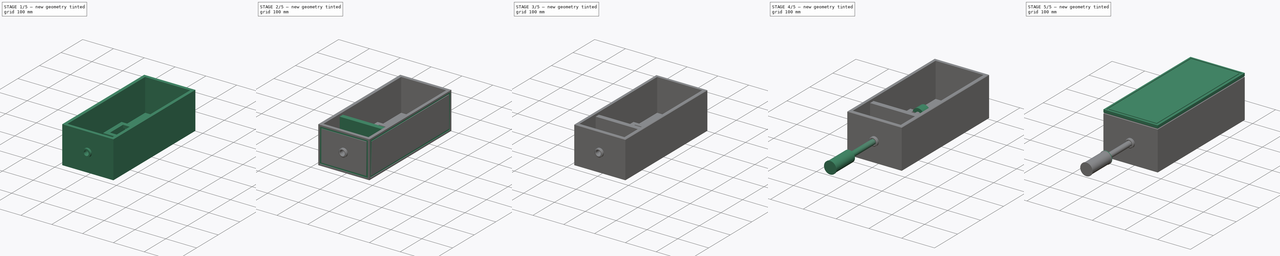
[diagram: build sequence overview — one tinted view per stage of 5, left to right]
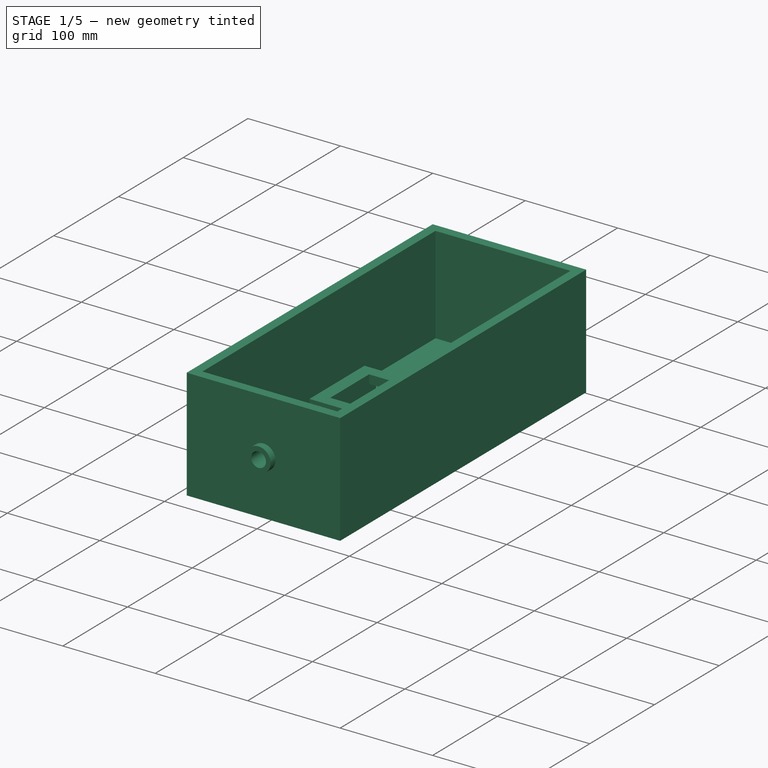
[diagram: stage 1 of 5 — iso view after this stage's code; geometry added in this stage tinted green]
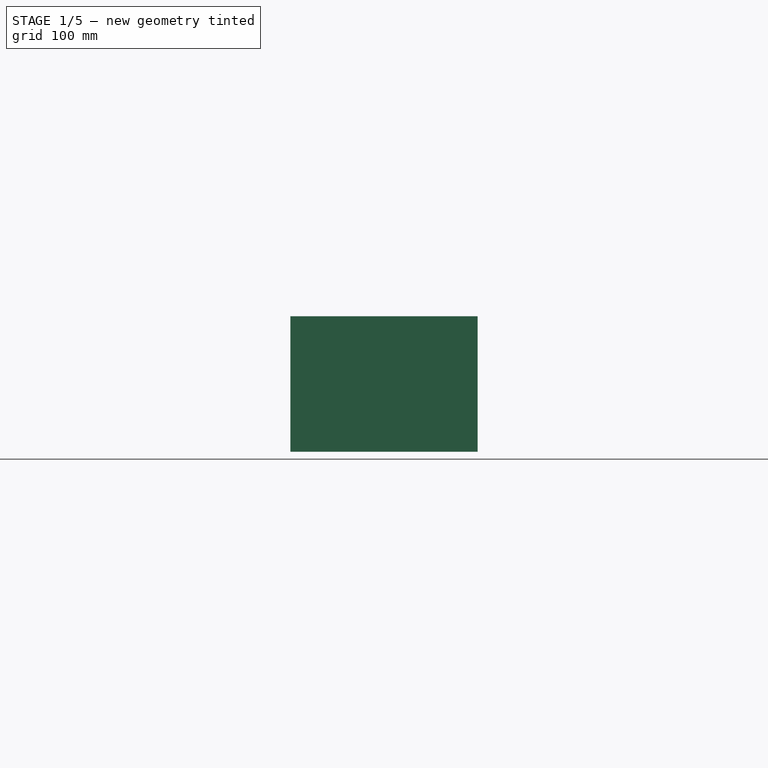
[diagram: stage 1 of 5 — front view after this stage's code; geometry added in this stage tinted green]
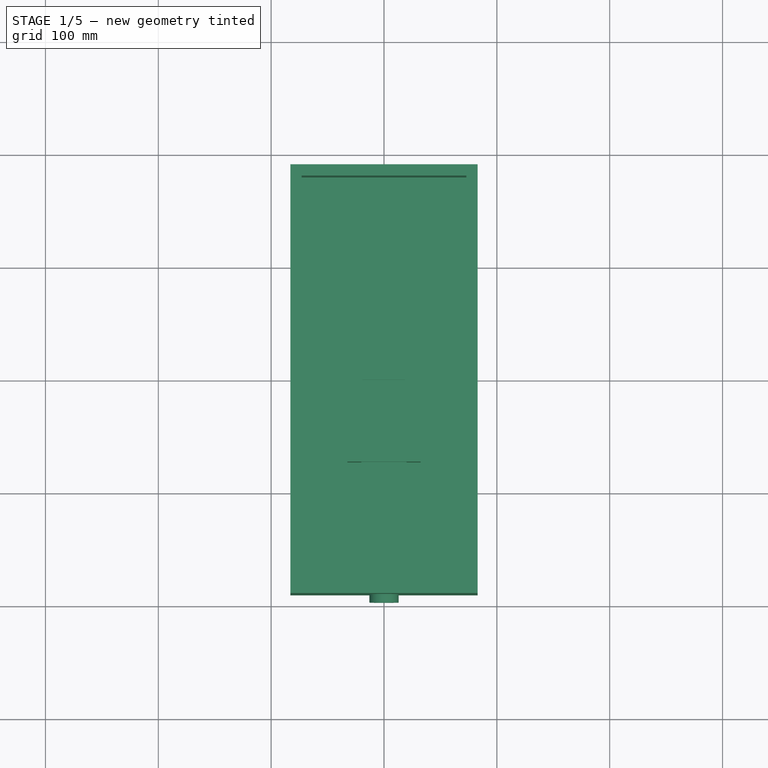
[diagram: stage 1 of 5 — top view after this stage's code; geometry added in this stage tinted green]
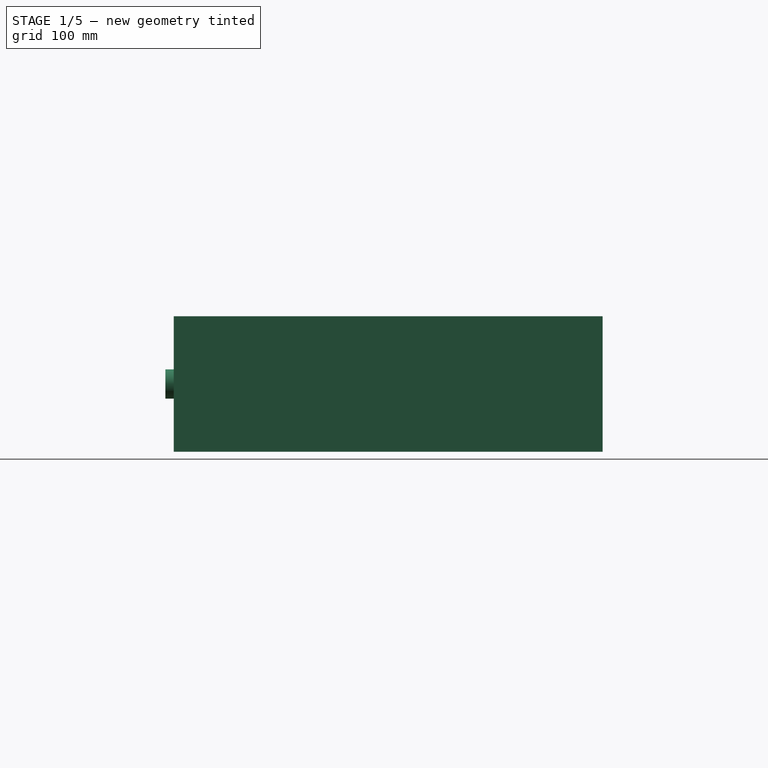
[diagram: stage 1 of 5 — right view after this stage's code; geometry added in this stage tinted green]
FCSTD DOCUMENT  (FreeCAD 1.0R39285 (Git))
Label: MouseSensorAdditionalPart
License: All rights reserved
LicenseURL: https://en.wikipedia.org/wiki/All_rights_reserved
objects: Sketcher::SketchObject×24, PartDesign::Pad×16, PartDesign::Pocket×11, PartDesign::Chamfer×8, PartDesign::Body×4, PartDesign::Hole×1
note: 160 computed .brp shape members not serialized (recipe doc carries the construction recipe); baked Part::Feature solids carry a one-line shape summary decoded from their .brp

FEATURE [PartDesign::Body] Body002  label="ControllerStick"
  AllowCompound = false
  Group = -> [Sketch016,Pad006,Sketch017,Pad007,Chamfer006,Sketch018,Pad008,Sketch019,Pad009,Sketch020,Pad010,Chamfer007]
  Origin = -> Origin002
  Tip = -> Chamfer007
FEATURE [Sketcher::SketchObject] Sketch
  ArcFitTolerance = 1e-06
  AttachmentSupport = -> [XY_Plane]
  FullyConstrained = true
  MakeInternals = false
  MapMode = 5
  sketch-geometry (5):
    g0: LineSegment StartX=-83 StartY=-190 StartZ=0 EndX=83 EndY=-190 EndZ=0
    g1: LineSegment StartX=83 StartY=-190 StartZ=0 EndX=83 EndY=190 EndZ=0
    g2: LineSegment StartX=83 StartY=190 StartZ=0 EndX=-83 EndY=190 EndZ=0
    g3: LineSegment StartX=-83 StartY=190 StartZ=0 EndX=-83 EndY=-190 EndZ=0
    g4: GeomPoint [constr] X=0 Y=0 Z=0
  constraints (12):
    c: Coincident(g0,g1)
    c: Coincident(g1,g2)
    c: Coincident(g2,g3)
    c: Coincident(g3,g0)
    c: Horizontal(g0)
    c: Horizontal(g2)
    c: Vertical(g1)
    c: Vertical(g3)
    c: Symmetric(g2,g0,g4)
    c: Distance(g1,g3) = 166
    c: Distance(g0,g2) = 380
    c: Coincident(g4,g-1)
FEATURE [PartDesign::Pad] Pad
  Direction = (0,0,1)
  Length = 120
  Length2 = 10
  Profile = -> Sketch
  ReferenceAxis = -> Sketch [N_Axis]
  Refine = true
  Suppressed = false
  Type = 0
FEATURE [Sketcher::SketchObject] Sketch001
  ArcFitTolerance = 1e-06
  AttachmentSupport = -> [Pad]
  FullyConstrained = true
  MakeInternals = false
  MapMode = 5
  Placement = pos=(0,0,120) rot=(0,0,1;0rad)
  sketch-geometry (5):
    g0: LineSegment StartX=-73 StartY=-180 StartZ=0 EndX=73 EndY=-180 EndZ=0
    g1: LineSegment StartX=73 StartY=-180 StartZ=0 EndX=73 EndY=180 EndZ=0
    g2: LineSegment StartX=73 StartY=180 StartZ=0 EndX=-73 EndY=180 EndZ=0
    g3: LineSegment StartX=-73 StartY=180 StartZ=0 EndX=-73 EndY=-180 EndZ=0
    g4: GeomPoint [constr] X=0 Y=0 Z=0
  constraints (12):
    c: Coincident(g0,g1)
    c: Coincident(g1,g2)
    c: Coincident(g2,g3)
    c: Coincident(g3,g0)
    c: Horizontal(g0)
    c: Horizontal(g2)
    c: Vertical(g1)
    c: Vertical(g3)
    c: Symmetric(g2,g0,g4)
    c: Distance(g1,g3) = 146
    c: Distance(g0,g2) = 360
    c: Coincident(g4,g-1)
FEATURE [PartDesign::Pocket] Pocket
  BaseFeature = -> Pad
  Direction = (0,0,-1)
  Length = 105
  Length2 = 5
  Profile = -> Sketch001
  ReferenceAxis = -> Sketch001 [N_Axis]
  Refine = true
  Suppressed = false
  Type = 0
FEATURE [Sketcher::SketchObject] Sketch002
  ArcFitTolerance = 1e-06
  AttachmentSupport = -> [Pocket]
  FullyConstrained = false
  MakeInternals = false
  MapMode = 5
  Placement = pos=(0,-190,0) rot=(1,0,0;1.5708rad)
  sketch-geometry (1):
    g0: Circle CenterX=0 CenterY=59.9969 CenterZ=0 NormalX=0 NormalY=0 NormalZ=1 AngleXU=0 Radius=13
  constraints (2):
    c: Diameter(g0) = 26
    c: PointOnObject(g0,g-2)
FEATURE [PartDesign::Pad] Pad001
  BaseFeature = -> Pocket
  Direction = (0,-1,2e-16)
  Length = 7.5
  Length2 = 10
  Profile = -> Sketch002 [Edge1]
  ReferenceAxis = -> Sketch002 [N_Axis]
  Refine = true
  Suppressed = false
  Type = 0
FEATURE [Sketcher::SketchObject] Sketch003
  ArcFitTolerance = 1e-06
  AttachmentSupport = -> [Pad001]
  FullyConstrained = false
  MakeInternals = false
  MapMode = 5
  Placement = pos=(-1.442e-13,-197.5,2.489e-13) rot=(1,0,0;1.5708rad)
  sketch-geometry (1):
    g0: Circle CenterX=0 CenterY=60.0001 CenterZ=0 NormalX=0 NormalY=0 NormalZ=1 AngleXU=0 Radius=8
  constraints (2):
    c: Diameter(g0) = 16
    c: PointOnObject(g0,g-2)
FEATURE [PartDesign::Pocket] Pocket001
  BaseFeature = -> Pad001
  Direction = (0,1,-1.4e-15)
  Length = 17.5
  Length2 = 5
  Profile = -> Sketch003
  ReferenceAxis = -> Sketch003 [N_Axis]
  Refine = true
  Suppressed = false
  Type = 0
FEATURE [PartDesign::Body] Body  label="ControllerBody"
  AllowCompound = false
  Group = -> [Sketch,Pad,Sketch001,Pocket,Sketch002,Pad001,Sketch003,Pocket001,Chamfer,Chamfer001,Sketch007,Pad004,Sketch008,Hole,Sketch009,Pocket003,Sketch010,Pocket004,Sketch011,Pocket005,Sketch012,Pocket006,Sketch013,Pocket007,Sketch014,Pad005,Chamfer002,Chamfer003,Chamfer004,Pad011,Pad012,Pad013,Pad014]
  Origin = -> Origin
  Tip = -> Pad014
FEATURE [Sketcher::SketchObject] Sketch021
  ArcFitTolerance = 1e-06
  AttachmentSupport = -> [XY_Plane003]
  FullyConstrained = false
  MakeInternals = false
  MapMode = 5
  sketch-geometry (5):
    g0: LineSegment StartX=-32.5 StartY=-72.5 StartZ=0 EndX=32.5 EndY=-72.5 EndZ=0
    g1: LineSegment StartX=32.5 StartY=-72.5 StartZ=0 EndX=32.5 EndY=12.5 EndZ=0
    g2: LineSegment StartX=32.5 StartY=12.5 StartZ=0 EndX=-32.5 EndY=12.5 EndZ=0
    g3: LineSegment StartX=-32.5 StartY=12.5 StartZ=0 EndX=-32.5 EndY=-72.5 EndZ=0
    g4: GeomPoint [constr] X=0 Y=-30 Z=0
  constraints (12):
    c: PointOnObject(g4,g-2)
    c: Coincident(g0,g1)
    c: Coincident(g1,g2)
    c: Coincident(g2,g3)
    c: Coincident(g3,g0)
    c: Horizontal(g0)
    c: Horizontal(g2)
    c: Vertical(g1)
    c: Vertical(g3)
    c: Symmetric(g2,g0,g4)
    c: Distance(g1,g3) = 65
    c: Distance(g0,g2) = 85
FEATURE [PartDesign::Pad] Pad015
  Direction = (0,0,1)
  Length = 63
  Length2 = 10
  Profile = -> Sketch021
  ReferenceAxis = -> Sketch021 [N_Axis]
  Refine = true
  Suppressed = false
  Type = 0
FEATURE [Sketcher::SketchObject] Sketch022
  ArcFitTolerance = 1e-06
  AttachmentSupport = -> [Pad015]
  FullyConstrained = false
  MakeInternals = false
  MapMode = 5
  Placement = pos=(0,0,0) rot=(1,0,0;3.14159rad)
  sketch-geometry (5):
    g0: LineSegment StartX=-20 StartY=-12.5 StartZ=0 EndX=20 EndY=-12.5 EndZ=0
    g1: LineSegment StartX=20 StartY=-12.5 StartZ=0 EndX=20 EndY=72.5 EndZ=0
    g2: LineSegment StartX=20 StartY=72.5 StartZ=0 EndX=-20 EndY=72.5 EndZ=0
    g3: LineSegment StartX=-20 StartY=72.5 StartZ=0 EndX=-20 EndY=-12.5 EndZ=0
    g4: GeomPoint [constr] X=0 Y=30 Z=0
  constraints (12):
    c: PointOnObject(g4,g-2)
    c: Coincident(g0,g1)
    c: Coincident(g1,g2)
    c: Coincident(g2,g3)
    c: Coincident(g3,g0)
    c: Horizontal(g0)
    c: Horizontal(g2)
    c: Vertical(g1)
    c: Vertical(g3)
    c: Symmetric(g2,g0,g4)
    c: Distance(g1,g3) = 40
    c: Distance(g0,g2) = 85
FEATURE [PartDesign::Pocket] Pocket009
  BaseFeature = -> Pad015
  Direction = (0,0,1)
  Length = 53.7
  Length2 = 5
  Profile = -> Sketch022
  ReferenceAxis = -> Sketch022 [N_Axis]
  Refine = true
  Suppressed = false
  Type = 0
FEATURE [Sketcher::SketchObject] Sketch023
  ArcFitTolerance = 1e-06
  AttachmentSupport = -> [XY_Plane003]
  FullyConstrained = false
  MakeInternals = false
  MapMode = 5
  sketch-geometry (5):
    g0: LineSegment StartX=-18.75 StartY=-60 StartZ=0 EndX=18.75 EndY=-60 EndZ=0
    g1: LineSegment StartX=18.75 StartY=-60 StartZ=0 EndX=18.75 EndY=0 EndZ=0
    g2: LineSegment StartX=18.75 StartY=0 StartZ=0 EndX=-18.75 EndY=0 EndZ=0
    g3: LineSegment StartX=-18.75 StartY=0 StartZ=0 EndX=-18.75 EndY=-60 EndZ=0
    g4: GeomPoint [constr] X=0 Y=-30 Z=0
  constraints (12):
    c: PointOnObject(g4,g-2)
    c: Coincident(g0,g1)
    c: Coincident(g1,g2)
    c: Coincident(g2,g3)
    c: Coincident(g3,g0)
    c: Horizontal(g0)
    c: Horizontal(g2)
    c: Vertical(g1)
    c: Vertical(g3)
    c: Symmetric(g2,g0,g4)
    c: Distance(g1,g3) = 37.5
    c: PointOnObject(g1,g-1)
FEATURE [PartDesign::Pocket] Pocket010
  BaseFeature = -> Pocket009
  Direction = (0,0,-1)
  Length = 63
  Length2 = 5
  Profile = -> Sketch023
  ReferenceAxis = -> Sketch023 [N_Axis]
  Refine = true
  Reversed = true
  Suppressed = false
  Type = 0
FEATURE [PartDesign::Body] Body003  label="MouseSensorAdditionalPart"
  AllowCompound = false
  Group = -> [Sketch021,Pad015,Sketch022,Pocket009,Sketch023,Pocket010]
  Origin = -> Origin003
  Placement = pos=(0,0,15) rot=(0,0,1;0rad)
  Tip = -> Pocket010
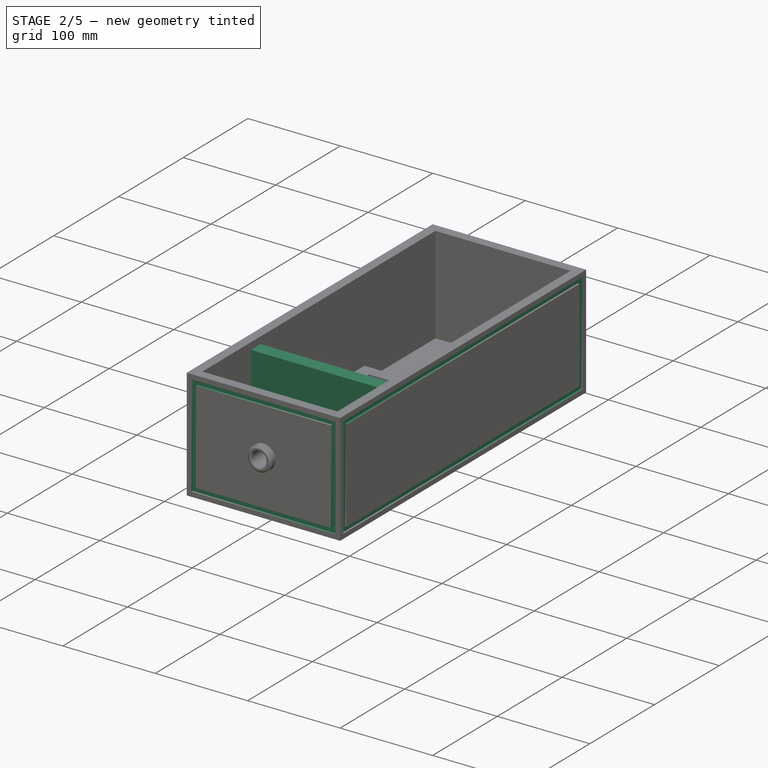
[diagram: stage 2 of 5 — iso view after this stage's code; geometry added in this stage tinted green]
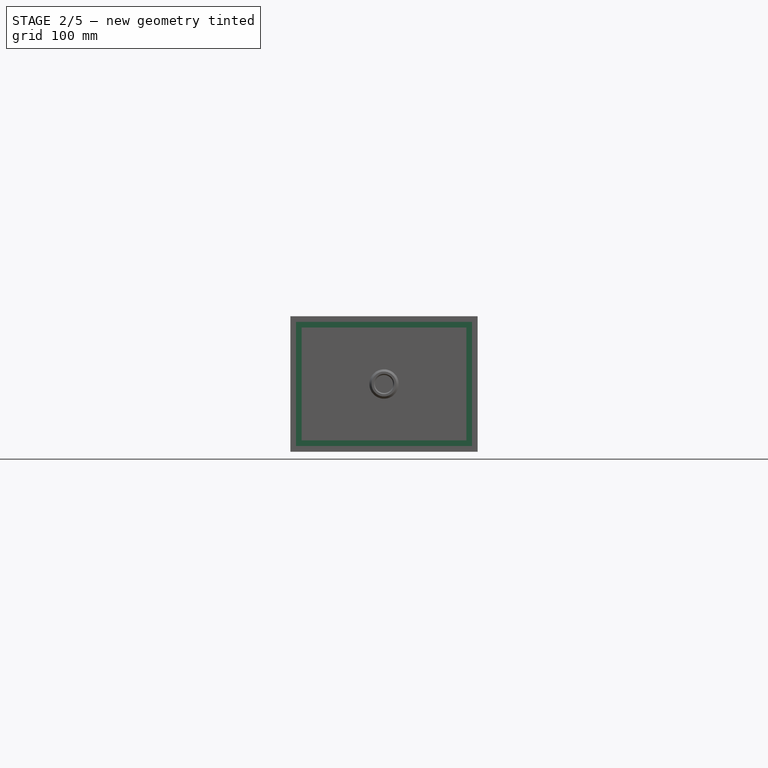
[diagram: stage 2 of 5 — front view after this stage's code; geometry added in this stage tinted green]
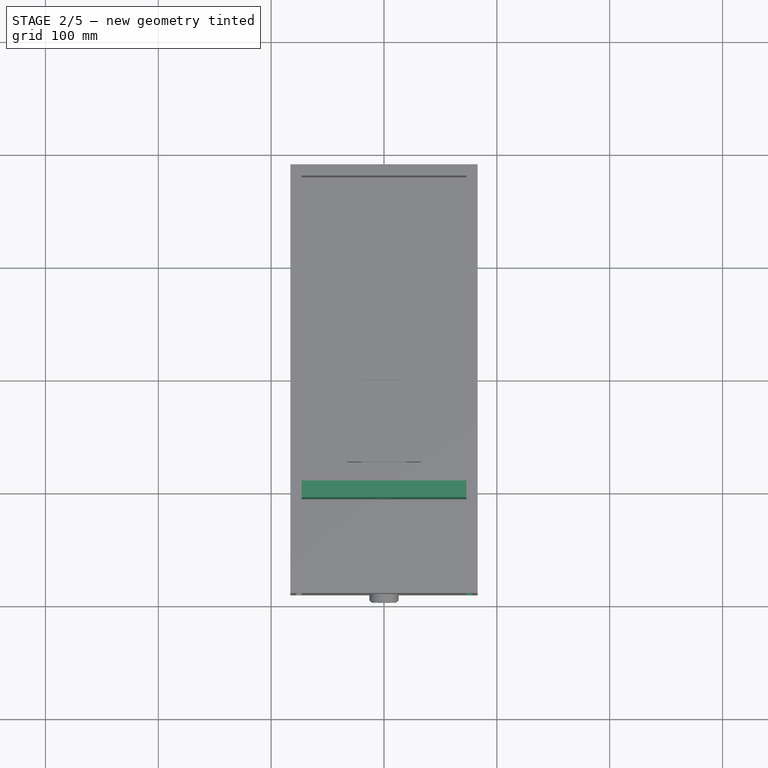
[diagram: stage 2 of 5 — top view after this stage's code; geometry added in this stage tinted green]
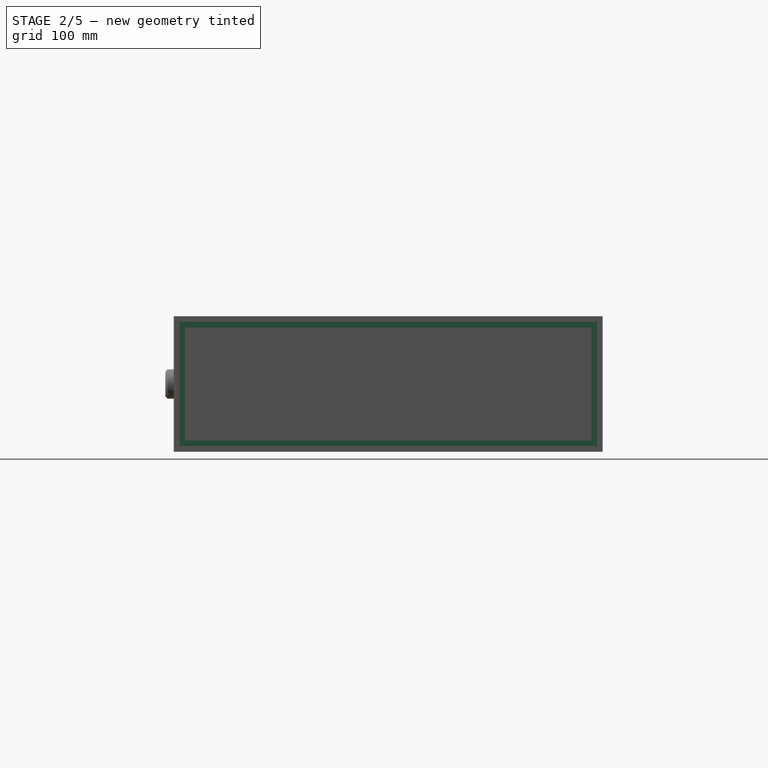
[diagram: stage 2 of 5 — right view after this stage's code; geometry added in this stage tinted green]
FEATURE [PartDesign::Chamfer] Chamfer
  Angle = 45
  Base = -> Pocket001 [Edge19]
  BaseFeature = -> Pocket001
  ChamferType = 0
  FlipDirection = false
  Refine = true
  Size = 2
  Size2 = 1
  SupportTransform = false
  Suppressed = false
  UseAllEdges = false
FEATURE [PartDesign::Chamfer] Chamfer001
  Angle = 45
  Base = -> Chamfer [Edge10]
  BaseFeature = -> Chamfer
  ChamferType = 0
  FlipDirection = false
  Refine = true
  Size = 1
  Size2 = 1
  SupportTransform = false
  Suppressed = false
  UseAllEdges = false
FEATURE [Sketcher::SketchObject] Sketch007
  ArcFitTolerance = 1e-06
  AttachmentSupport = -> [Chamfer001]
  FullyConstrained = false
  MakeInternals = false
  MapMode = 5
  Placement = pos=(0,0,15) rot=(0,0,1;0rad)
  sketch-geometry (4):
    g0: LineSegment StartX=-73.0034 StartY=-90.0581 StartZ=0 EndX=-73.0034 EndY=-105.058 EndZ=0
    g1: LineSegment StartX=-73.0034 StartY=-105.058 StartZ=0 EndX=72.9966 EndY=-105.058 EndZ=0
    g2: LineSegment StartX=72.9966 StartY=-105.058 StartZ=0 EndX=72.9966 EndY=-90.0581 EndZ=0
    g3: LineSegment StartX=72.9966 StartY=-90.0581 StartZ=0 EndX=-73.0034 EndY=-90.0581 EndZ=0
  constraints (10):
    c: Coincident(g0,g1)
    c: Coincident(g1,g2)
    c: Coincident(g2,g3)
    c: Coincident(g3,g0)
    c: Vertical(g0)
    c: Vertical(g2)
    c: Horizontal(g1)
    c: Horizontal(g3)
    c: Distance(g0,g2) = 146
    c: Distance(g1,g3) = 15
FEATURE [PartDesign::Pad] Pad004
  BaseFeature = -> Chamfer001
  Direction = (0,0,1)
  Length = 97.5
  Length2 = 10
  Profile = -> Sketch007
  ReferenceAxis = -> Sketch007 [N_Axis]
  Refine = true
  Suppressed = false
  Type = 0
FEATURE [Sketcher::SketchObject] Sketch008
  ArcFitTolerance = 1e-06
  AttachmentSupport = -> [Pad004]
  FullyConstrained = false
  MakeInternals = false
  MapMode = 5
  Placement = pos=(0,-105.058,0) rot=(1,0,0;1.5708rad)
  sketch-geometry (1):
    g0: Circle CenterX=0 CenterY=60.0017 CenterZ=0 NormalX=0 NormalY=0 NormalZ=1 AngleXU=0 Radius=8
  constraints (2):
    c: Diameter(g0) = 16
    c: PointOnObject(g0,g-2)
FEATURE [PartDesign::Hole] Hole
  BaseFeature = -> Pad004
  CustomThreadClearance = 0
  Depth = 20
  DepthType = 0
  Diameter = 16
  DrillForDepth = false
  DrillPoint = 1
  DrillPointAngle = 118
  HoleCutCountersinkAngle = 90
  HoleCutCustomValues = false
  HoleCutDepth = 0
  HoleCutDiameter = 6.1
  HoleCutType = 0
  ModelThread = false
  Profile = -> Sketch008
  Refine = true
  Suppressed = false
  Tapered = true
  TaperedAngle = 90
  ThreadClass = 0
  ThreadDepth = 20
  ThreadDepthType = 0
  ThreadDirection = 0
  ThreadFit = 0
  ThreadSize = 0
  ThreadType = 0
  Threaded = false
  UseCustomThreadClearance = false
FEATURE [Sketcher::SketchObject] Sketch009
  ArcFitTolerance = 1e-06
  AttachmentSupport = -> [Hole]
  FullyConstrained = false
  MakeInternals = false
  MapMode = 5
  Placement = pos=(0,-190,0) rot=(1,0,0;1.5708rad)
  sketch-geometry (10):
    g0: LineSegment StartX=-78 StartY=5.06645 StartZ=0 EndX=78 EndY=5.06645 EndZ=0
    g1: LineSegment StartX=78 StartY=5.06645 StartZ=0 EndX=78 EndY=115.066 EndZ=0
    g2: LineSegment StartX=78 StartY=115.066 StartZ=0 EndX=-78 EndY=115.066 EndZ=0
    g3: LineSegment StartX=-78 StartY=115.066 StartZ=0 EndX=-78 EndY=5.06645 EndZ=0
    g4: GeomPoint [constr] X=0 Y=60.0664 Z=0
    g5: LineSegment StartX=-73 StartY=10.0664 StartZ=0 EndX=73 EndY=10.0664 EndZ=0
    g6: LineSegment StartX=73 StartY=10.0664 StartZ=0 EndX=73 EndY=110.066 EndZ=0
    g7: LineSegment StartX=73 StartY=110.066 StartZ=0 EndX=-73 EndY=110.066 EndZ=0
    g8: LineSegment StartX=-73 StartY=110.066 StartZ=0 EndX=-73 EndY=10.0664 EndZ=0
    g9: GeomPoint [constr] X=0 Y=60.0664 Z=0
  constraints (24):
    c: Coincident(g0,g1)
    c: Coincident(g1,g2)
    c: Coincident(g2,g3)
    c: Coincident(g3,g0)
    c: Horizontal(g0)
    c: Horizontal(g2)
    c: Vertical(g1)
    c: Vertical(g3)
    c: Symmetric(g2,g0,g4)
    c: Distance(g1,g3) = 156
    c: Distance(g0,g2) = 110
    c: PointOnObject(g4,g-2)
    c: Coincident(g5,g6)
    c: Coincident(g6,g7)
    c: Coincident(g7,g8)
    c: Coincident(g8,g5)
    c: Horizontal(g5)
    c: Horizontal(g7)
    c: Vertical(g6)
    c: Vertical(g8)
    c: Symmetric(g7,g5,g9)
    c: Distance(g6,g8) = 146
    c: Distance(g5,g7) = 100
    c: Coincident(g9,g4)
FEATURE [PartDesign::Pocket] Pocket003
  BaseFeature = -> Hole
  Direction = (0,1,-2e-16)
  Length = 2
  Length2 = 5
  Profile = -> Sketch009
  ReferenceAxis = -> Sketch009 [N_Axis]
  Refine = true
  Suppressed = false
  Type = 0
FEATURE [Sketcher::SketchObject] Sketch010
  ArcFitTolerance = 1e-06
  AttachmentSupport = -> [Pocket003]
  FullyConstrained = false
  MakeInternals = false
  MapMode = 5
  Placement = pos=(83,0,0) rot=(0.57735,0.57735,0.57735;2.0944rad)
  sketch-geometry (10):
    g0: LineSegment StartX=-185 StartY=5.04486 StartZ=0 EndX=185 EndY=5.04486 EndZ=0
    g1: LineSegment StartX=185 StartY=5.04486 StartZ=0 EndX=185 EndY=115.045 EndZ=0
    g2: LineSegment StartX=185 StartY=115.045 StartZ=0 EndX=-185 EndY=115.045 EndZ=0
    g3: LineSegment StartX=-185 StartY=115.045 StartZ=0 EndX=-185 EndY=5.04486 EndZ=0
    g4: GeomPoint [constr] X=0 Y=60.0449 Z=0
    g5: LineSegment StartX=-180 StartY=10.0449 StartZ=0 EndX=180 EndY=10.0449 EndZ=0
    g6: LineSegment StartX=180 StartY=10.0449 StartZ=0 EndX=180 EndY=110.045 EndZ=0
    g7: LineSegment StartX=180 StartY=110.045 StartZ=0 EndX=-180 EndY=110.045 EndZ=0
    g8: LineSegment StartX=-180 StartY=110.045 StartZ=0 EndX=-180 EndY=10.0449 EndZ=0
    g9: GeomPoint [constr] X=0 Y=60.0449 Z=0
  constraints (24):
    c: Coincident(g0,g1)
    c: Coincident(g1,g2)
    c: Coincident(g2,g3)
    c: Coincident(g3,g0)
    c: Horizontal(g0)
    c: Horizontal(g2)
    c: Vertical(g1)
    c: Vertical(g3)
    c: Symmetric(g2,g0,g4)
    c: Distance(g1,g3) = 370
    c: Distance(g0,g2) = 110
    c: PointOnObject(g4,g-2)
    c: Coincident(g5,g6)
    c: Coincident(g6,g7)
    c: Coincident(g7,g8)
    c: Coincident(g8,g5)
    c: Horizontal(g5)
    c: Horizontal(g7)
    c: Vertical(g6)
    c: Vertical(g8)
    c: Symmetric(g7,g5,g9)
    c: Distance(g6,g8) = 360
    c: Distance(g5,g7) = 100
    c: Coincident(g9,g4)
FEATURE [PartDesign::Pocket] Pocket004
  BaseFeature = -> Pocket003
  Direction = (-1,0,0)
  Length = 2
  Length2 = 5
  Profile = -> Sketch010
  ReferenceAxis = -> Sketch010 [N_Axis]
  Refine = true
  Suppressed = false
  Type = 0
FEATURE [Sketcher::SketchObject] Sketch011
  ArcFitTolerance = 1e-06
  AttachmentSupport = -> [Pocket004]
  FullyConstrained = false
  MakeInternals = false
  MapMode = 5
  Placement = pos=(0,190,0) rot=(0,0.707107,0.707107;3.14159rad)
  sketch-geometry (10):
    g0: LineSegment StartX=-78 StartY=5.0321 StartZ=0 EndX=78 EndY=5.0321 EndZ=0
    g1: LineSegment StartX=78 StartY=5.0321 StartZ=0 EndX=78 EndY=115.032 EndZ=0
    g2: LineSegment StartX=78 StartY=115.032 StartZ=0 EndX=-78 EndY=115.032 EndZ=0
    g3: LineSegment StartX=-78 StartY=115.032 StartZ=0 EndX=-78 EndY=5.0321 EndZ=0
    g4: GeomPoint [constr] X=0 Y=60.0321 Z=0
    g5: LineSegment StartX=-73 StartY=10.0321 StartZ=0 EndX=73 EndY=10.0321 EndZ=0
    g6: LineSegment StartX=73 StartY=10.0321 StartZ=0 EndX=73 EndY=110.032 EndZ=0
    g7: LineSegment StartX=73 StartY=110.032 StartZ=0 EndX=-73 EndY=110.032 EndZ=0
    g8: LineSegment StartX=-73 StartY=110.032 StartZ=0 EndX=-73 EndY=10.0321 EndZ=0
    g9: GeomPoint [constr] X=0 Y=60.0321 Z=0
  constraints (24):
    c: Coincident(g0,g1)
    c: Coincident(g1,g2)
    c: Coincident(g2,g3)
    c: Coincident(g3,g0)
    c: Horizontal(g0)
    c: Horizontal(g2)
    c: Vertical(g1)
    c: Vertical(g3)
    c: Symmetric(g2,g0,g4)
    c: Distance(g1,g3) = 156
    c: Distance(g0,g2) = 110
    c: PointOnObject(g4,g-2)
    c: Coincident(g5,g6)
    c: Coincident(g6,g7)
    c: Coincident(g7,g8)
    c: Coincident(g8,g5)
    c: Horizontal(g5)
    c: Horizontal(g7)
    c: Vertical(g6)
    c: Vertical(g8)
    c: Symmetric(g7,g5,g9)
    c: Distance(g6,g8) = 146
    c: Distance(g5,g7) = 100
    c: Coincident(g9,g4)
FEATURE [PartDesign::Pocket] Pocket005
  BaseFeature = -> Pocket004
  Direction = (0,-1,2e-16)
  Length = 2
  Length2 = 5
  Profile = -> Sketch011
  ReferenceAxis = -> Sketch011 [N_Axis]
  Refine = true
  Suppressed = false
  Type = 0
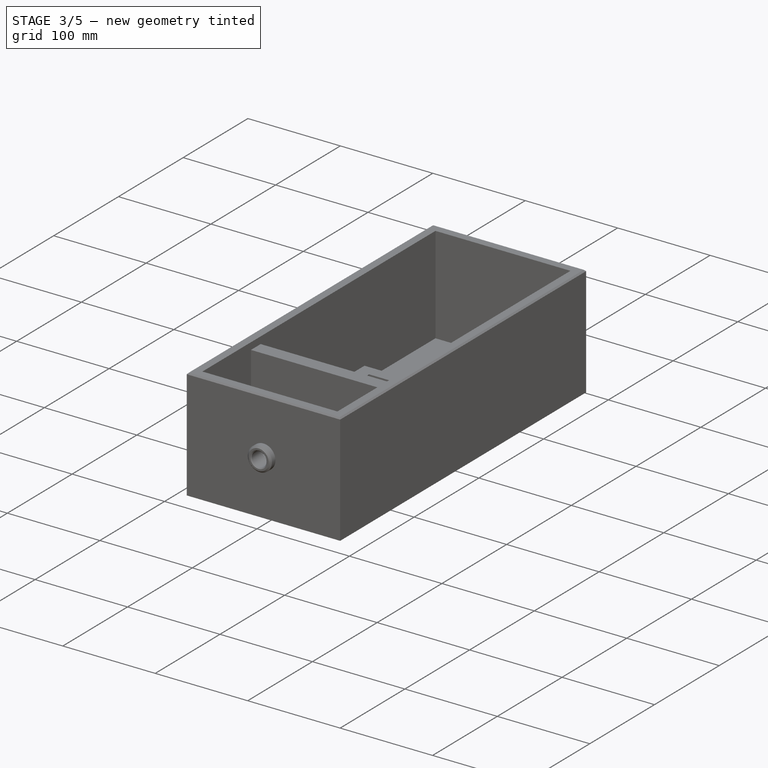
[diagram: stage 3 of 5 — iso view after this stage's code; geometry added in this stage tinted green]
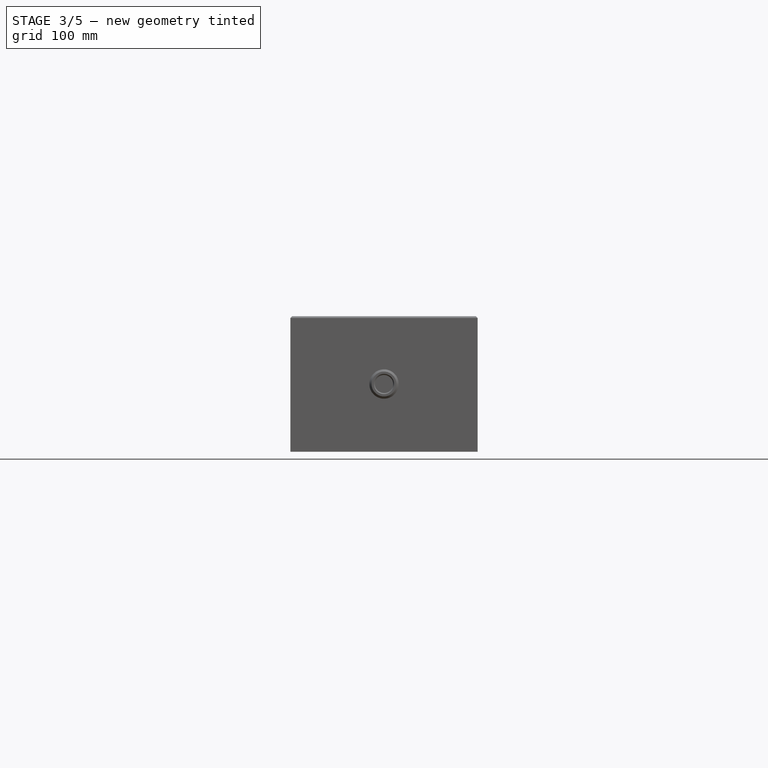
[diagram: stage 3 of 5 — front view after this stage's code; geometry added in this stage tinted green]
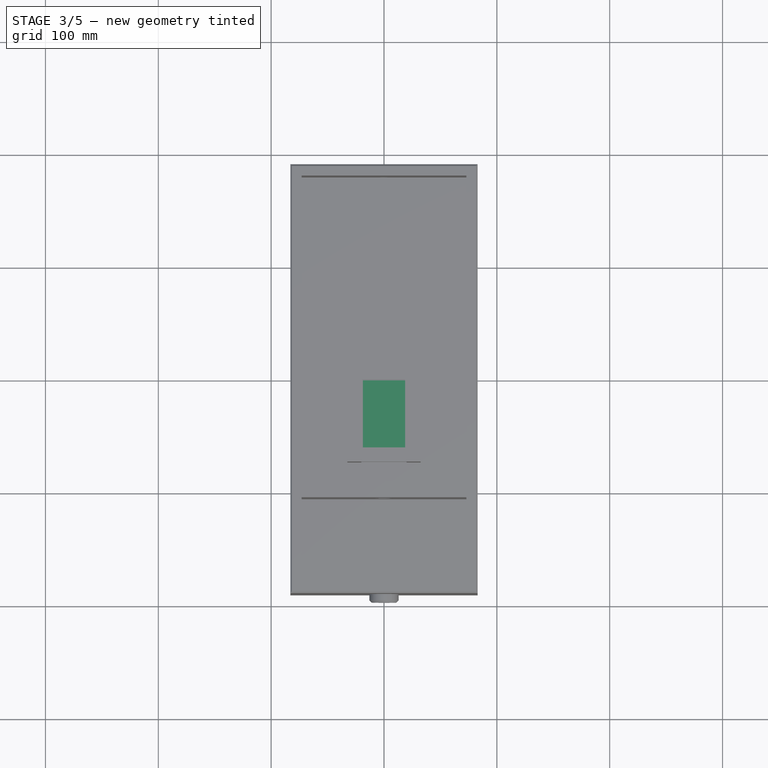
[diagram: stage 3 of 5 — top view after this stage's code; geometry added in this stage tinted green]
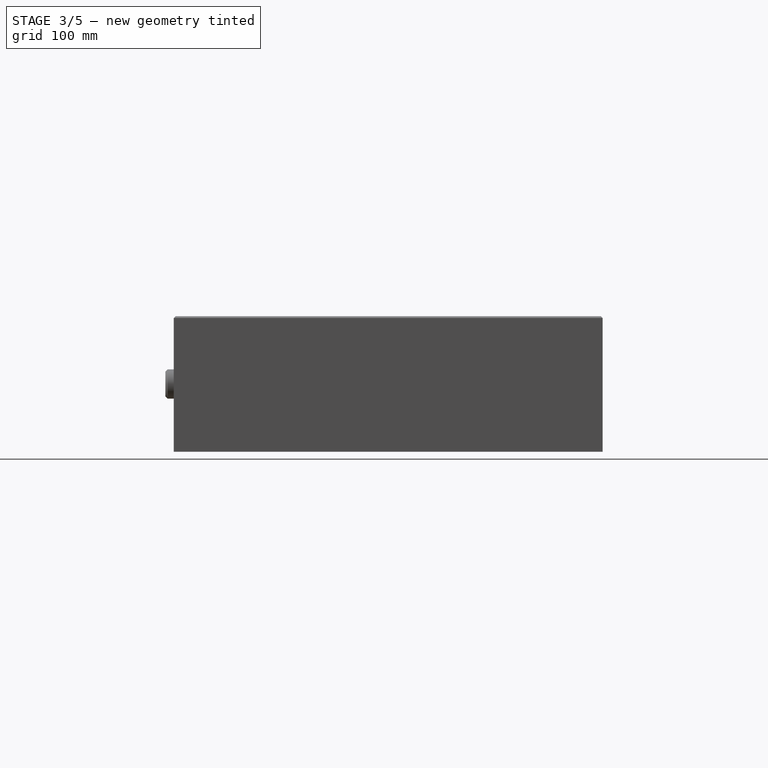
[diagram: stage 3 of 5 — right view after this stage's code; geometry added in this stage tinted green]
FEATURE [Sketcher::SketchObject] Sketch012
  ArcFitTolerance = 1e-06
  AttachmentSupport = -> [Pocket005]
  FullyConstrained = false
  MakeInternals = false
  MapMode = 5
  Placement = pos=(-83,0,0) rot=(0.57735,-0.57735,-0.57735;2.0944rad)
  sketch-geometry (10):
    g0: LineSegment StartX=-185 StartY=5.02638 StartZ=0 EndX=185 EndY=5.02638 EndZ=0
    g1: LineSegment StartX=185 StartY=5.02638 StartZ=0 EndX=185 EndY=115.026 EndZ=0
    g2: LineSegment StartX=185 StartY=115.026 StartZ=0 EndX=-185 EndY=115.026 EndZ=0
    g3: LineSegment StartX=-185 StartY=115.026 StartZ=0 EndX=-185 EndY=5.02638 EndZ=0
    g4: GeomPoint [constr] X=0 Y=60.0264 Z=0
    g5: LineSegment StartX=-180 StartY=10.0264 StartZ=0 EndX=180 EndY=10.0264 EndZ=0
    g6: LineSegment StartX=180 StartY=10.0264 StartZ=0 EndX=180 EndY=110.026 EndZ=0
    g7: LineSegment StartX=180 StartY=110.026 StartZ=0 EndX=-180 EndY=110.026 EndZ=0
    g8: LineSegment StartX=-180 StartY=110.026 StartZ=0 EndX=-180 EndY=10.0264 EndZ=0
    g9: GeomPoint [constr] X=0 Y=60.0264 Z=0
  constraints (24):
    c: Coincident(g0,g1)
    c: Coincident(g1,g2)
    c: Coincident(g2,g3)
    c: Coincident(g3,g0)
    c: Horizontal(g0)
    c: Horizontal(g2)
    c: Vertical(g1)
    c: Vertical(g3)
    c: Symmetric(g2,g0,g4)
    c: Distance(g1,g3) = 370
    c: Distance(g0,g2) = 110
    c: PointOnObject(g4,g-2)
    c: Coincident(g5,g6)
    c: Coincident(g6,g7)
    c: Coincident(g7,g8)
    c: Coincident(g8,g5)
    c: Horizontal(g5)
    c: Horizontal(g7)
    c: Vertical(g6)
    c: Vertical(g8)
    c: Symmetric(g7,g5,g9)
    c: Distance(g6,g8) = 360
    c: Distance(g5,g7) = 100
    c: Coincident(g9,g4)
FEATURE [PartDesign::Pocket] Pocket006
  BaseFeature = -> Pocket005
  Direction = (1,0,0)
  Length = 2
  Length2 = 5
  Profile = -> Sketch012
  ReferenceAxis = -> Sketch012 [N_Axis]
  Refine = true
  Suppressed = false
  Type = 0
FEATURE [Sketcher::SketchObject] Sketch013
  ArcFitTolerance = 1e-06
  AttachmentSupport = -> [Pocket006]
  FullyConstrained = false
  MakeInternals = false
  MapMode = 5
  Placement = pos=(0,190,0) rot=(0,0.707107,0.707107;3.14159rad)
  sketch-geometry (1):
    g0: Circle CenterX=0 CenterY=20.0882 CenterZ=0 NormalX=0 NormalY=0 NormalZ=1 AngleXU=0 Radius=2.5
  constraints (2):
    c: Diameter(g0) = 5
    c: PointOnObject(g0,g-2)
FEATURE [PartDesign::Pocket] Pocket007
  BaseFeature = -> Pocket006
  Direction = (0,-1,2e-16)
  Length = 15
  Length2 = 5
  Profile = -> Sketch013
  ReferenceAxis = -> Sketch013 [N_Axis]
  Refine = true
  Suppressed = false
  Type = 0
FEATURE [Sketcher::SketchObject] Sketch014
  ArcFitTolerance = 1e-06
  AttachmentSupport = -> [Pocket007]
  FullyConstrained = true
  MakeInternals = false
  MapMode = 5
  Placement = pos=(0,0,15) rot=(0,0,1;0rad)
  sketch-geometry (5):
    g0: LineSegment StartX=-20 StartY=-60 StartZ=0 EndX=20 EndY=-60 EndZ=0
    g1: LineSegment StartX=20 StartY=-60 StartZ=0 EndX=20 EndY=0 EndZ=0
    g2: LineSegment StartX=20 StartY=0 StartZ=0 EndX=-20 EndY=0 EndZ=0
    g3: LineSegment StartX=-20 StartY=0 StartZ=0 EndX=-20 EndY=-60 EndZ=0
    g4: GeomPoint [constr] X=0 Y=-30 Z=0
  constraints (13):
    c: Coincident(g0,g1)
    c: Coincident(g1,g2)
    c: Coincident(g2,g3)
    c: Coincident(g3,g0)
    c: Horizontal(g0)
    c: Horizontal(g2)
    c: Vertical(g1)
    c: Vertical(g3)
    c: Symmetric(g2,g0,g4)
    c: Distance(g1,g3) = 40
    c: Distance(g0,g2) = 60
    c: PointOnObject(g4,g-2)
    c: PointOnObject(g1,g-1)
FEATURE [PartDesign::Pad] Pad005
  BaseFeature = -> Pocket007
  Direction = (0,0,1)
  Length = 15
  Length2 = 10
  Profile = -> Sketch014
  ReferenceAxis = -> Sketch014 [N_Axis]
  Refine = true
  Suppressed = false
  Type = 0
FEATURE [PartDesign::Chamfer] Chamfer002
  Angle = 45
  Base = -> Pad005 [Edge95]
  BaseFeature = -> Pad005
  ChamferType = 0
  FlipDirection = false
  Refine = true
  Size = 1
  Size2 = 1
  SupportTransform = false
  Suppressed = false
  UseAllEdges = false
FEATURE [PartDesign::Chamfer] Chamfer003
  Angle = 45
  Base = -> Chamfer002 [Edge3]
  BaseFeature = -> Chamfer002
  ChamferType = 0
  FlipDirection = false
  Refine = true
  Size = 1
  Size2 = 1
  SupportTransform = false
  Suppressed = false
  UseAllEdges = false
FEATURE [PartDesign::Chamfer] Chamfer004
  Angle = 45
  Base = -> Chamfer003 [Edge20,Edge19,Edge21,Edge22]
  BaseFeature = -> Chamfer003
  ChamferType = 0
  FlipDirection = false
  Refine = true
  Size = 1.5
  Size2 = 1
  SupportTransform = false
  Suppressed = false
  UseAllEdges = false
FEATURE [PartDesign::Pad] Pad011
  BaseFeature = -> Chamfer004
  Direction = (1,0,0)
  Length = 2
  Length2 = 10
  Profile = -> Chamfer004 [Face48]
  Refine = true
  Suppressed = false
  Type = 0
FEATURE [PartDesign::Pad] Pad012
  BaseFeature = -> Pad011
  Direction = (0,-1,3e-16)
  Length = 2
  Length2 = 10
  Profile = -> Pad011 [Face42]
  Refine = true
  Suppressed = false
  Type = 0
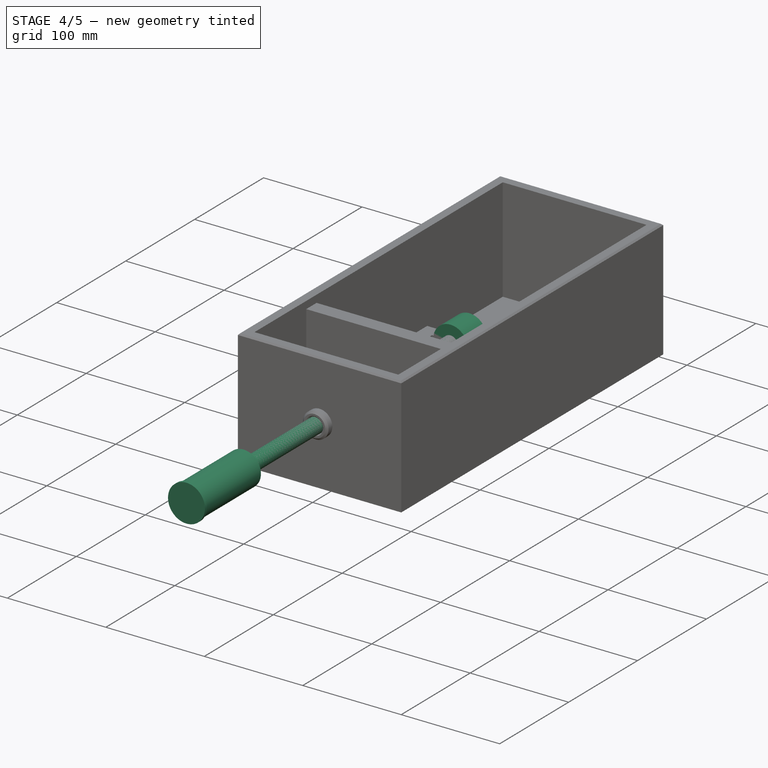
[diagram: stage 4 of 5 — iso view after this stage's code; geometry added in this stage tinted green]
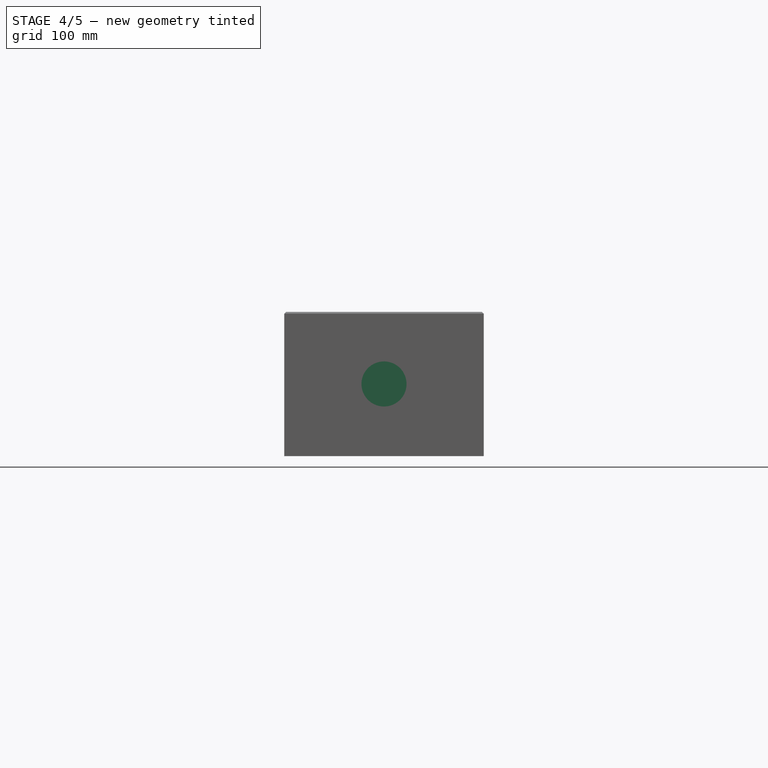
[diagram: stage 4 of 5 — front view after this stage's code; geometry added in this stage tinted green]
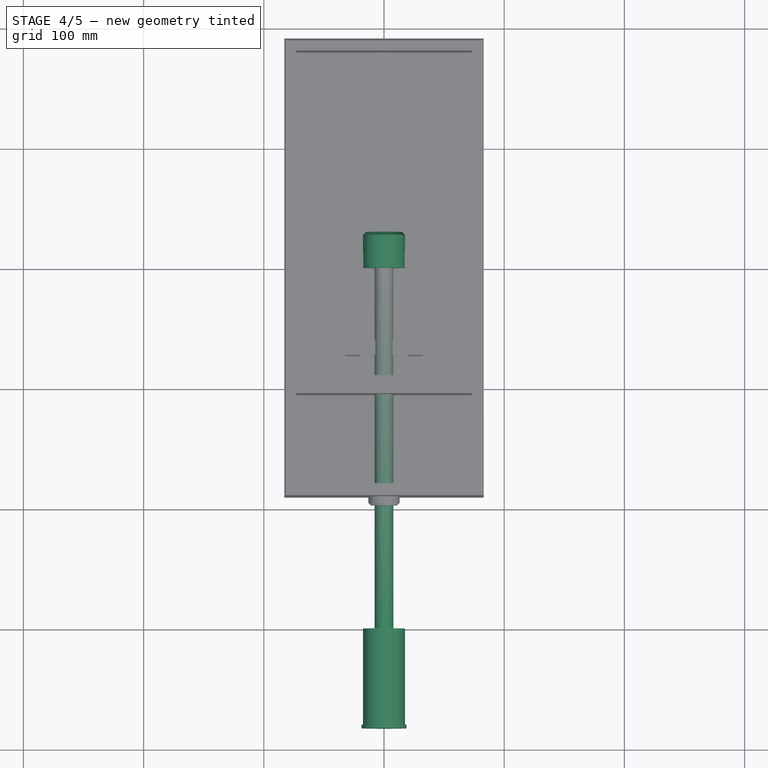
[diagram: stage 4 of 5 — top view after this stage's code; geometry added in this stage tinted green]
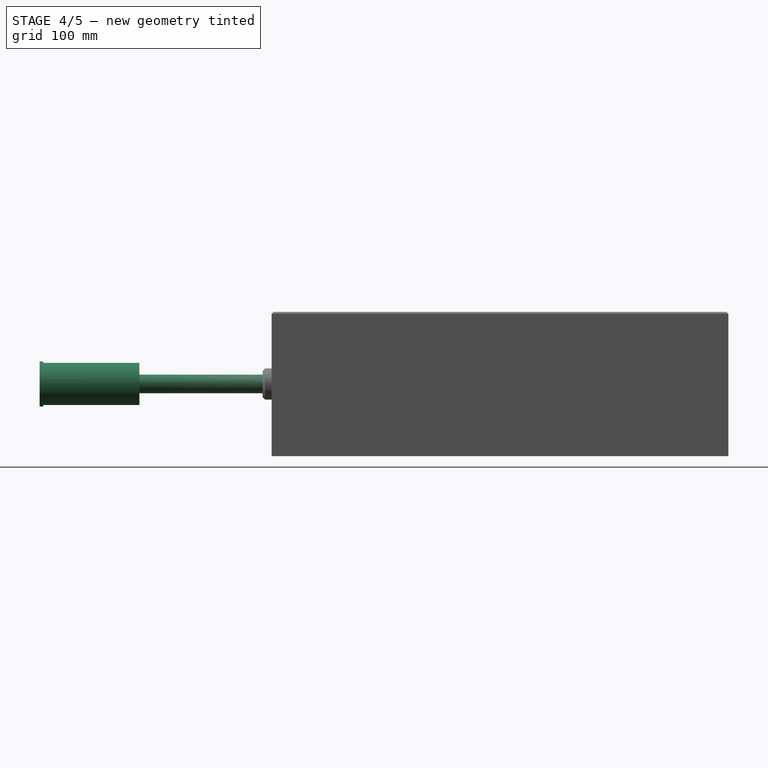
[diagram: stage 4 of 5 — right view after this stage's code; geometry added in this stage tinted green]
FEATURE [PartDesign::Body] Body001  label="ControllerLid"
  AllowCompound = false
  Group = -> [Sketch004,Pad002,Sketch005,Pocket002,Sketch006,Pad003,Sketch015,Pocket008,Chamfer005]
  Origin = -> Origin001
  Tip = -> Chamfer005
FEATURE [Sketcher::SketchObject] Sketch016
  ArcFitTolerance = 1e-06
  AttachmentSupport = -> [XZ_Plane002]
  FullyConstrained = false
  MakeInternals = false
  MapMode = 5
  Placement = pos=(0,0,0) rot=(1,0,0;1.5708rad)
  sketch-geometry (1):
    g0: Circle CenterX=0 CenterY=60.0157 CenterZ=0 NormalX=0 NormalY=0 NormalZ=1 AngleXU=0 Radius=7.75
  constraints (2):
    c: Diameter(g0) = 15.5
    c: PointOnObject(g0,g-2)
FEATURE [PartDesign::Pad] Pad006
  Direction = (0,-1,2e-16)
  Length = 300
  Length2 = 10
  Placement = pos=(0,0,0) rot=(1,0,0;1.5708rad)
  Profile = -> Sketch016
  ReferenceAxis = -> Sketch016 [N_Axis]
  Refine = true
  Suppressed = false
  Type = 0
FEATURE [Sketcher::SketchObject] Sketch017
  ArcFitTolerance = 1e-06
  AttachmentSupport = -> [Pad006]
  FullyConstrained = false
  MakeInternals = false
  MapMode = 5
  Placement = pos=(0,1.33e-14,0) rot=(-1,0,0;1.5708rad)
  sketch-geometry (1):
    g0: Circle CenterX=0 CenterY=-60.0941 CenterZ=0 NormalX=0 NormalY=0 NormalZ=1 AngleXU=0 Radius=17.5
  constraints (2):
    c: Diameter(g0) = 35
    c: PointOnObject(g0,g-2)
FEATURE [PartDesign::Pad] Pad007
  BaseFeature = -> Pad006
  Direction = (0,1,2e-16)
  Length = 30
  Length2 = 10
  Placement = pos=(0,0,0) rot=(1,0,0;1.5708rad)
  Profile = -> Sketch017
  ReferenceAxis = -> Sketch017 [N_Axis]
  Refine = true
  Suppressed = false
  Type = 0
FEATURE [PartDesign::Chamfer] Chamfer006
  Angle = 45
  Base = -> Pad007 [Edge6]
  BaseFeature = -> Pad007
  ChamferType = 0
  FlipDirection = false
  Placement = pos=(0,0,0) rot=(1,0,0;1.5708rad)
  Refine = true
  Size = 2.5
  Size2 = 1
  SupportTransform = false
  Suppressed = false
  UseAllEdges = false
FEATURE [Sketcher::SketchObject] Sketch018
  ArcFitTolerance = 1e-06
  AttachmentSupport = -> [Chamfer006]
  FullyConstrained = false
  MakeInternals = false
  MapMode = 5
  Placement = pos=(0,-300,0) rot=(1,0,0;1.5708rad)
  sketch-geometry (1):
    g0: Circle CenterX=0 CenterY=60.0403 CenterZ=0 NormalX=0 NormalY=0 NormalZ=1 AngleXU=0 Radius=17.5
  constraints (2):
    c: Diameter(g0) = 35
    c: PointOnObject(g0,g-2)
FEATURE [PartDesign::Pad] Pad008
  BaseFeature = -> Chamfer006
  Direction = (0,-1,2e-16)
  Length = 80
  Length2 = 10
  Placement = pos=(0,0,0) rot=(1,0,0;1.5708rad)
  Profile = -> Sketch018
  ReferenceAxis = -> Sketch018 [N_Axis]
  Refine = true
  Suppressed = false
  Type = 0
FEATURE [Sketcher::SketchObject] Sketch019
  ArcFitTolerance = 1e-06
  AttachmentSupport = -> [Pad008]
  FullyConstrained = false
  MakeInternals = false
  MapMode = 5
  Placement = pos=(0,-380,0) rot=(1,0,0;1.5708rad)
  sketch-geometry (1):
    g0: Circle CenterX=0 CenterY=60.0334 CenterZ=0 NormalX=0 NormalY=0 NormalZ=1 AngleXU=0 Radius=18.75
  constraints (2):
    c: Diameter(g0) = 37.5
    c: PointOnObject(g0,g-2)
FEATURE [PartDesign::Pad] Pad009
  BaseFeature = -> Pad008
  Direction = (0,-1,2e-16)
  Length = 3
  Length2 = 10
  Placement = pos=(0,0,0) rot=(1,0,0;1.5708rad)
  Profile = -> Sketch019
  ReferenceAxis = -> Sketch019 [N_Axis]
  Refine = true
  Suppressed = false
  Type = 0
FEATURE [PartDesign::Pad] Pad013
  BaseFeature = -> Pad012
  Direction = (0,1,-3e-16)
  Length = 2
  Length2 = 10
  Profile = -> Pad012 [Face39]
  Refine = true
  Suppressed = false
  Type = 0
FEATURE [PartDesign::Pad] Pad014
  BaseFeature = -> Pad013
  Direction = (-1,0,0)
  Length = 2
  Length2 = 10
  Profile = -> Pad013 [Face19]
  Refine = true
  Suppressed = false
  Type = 0
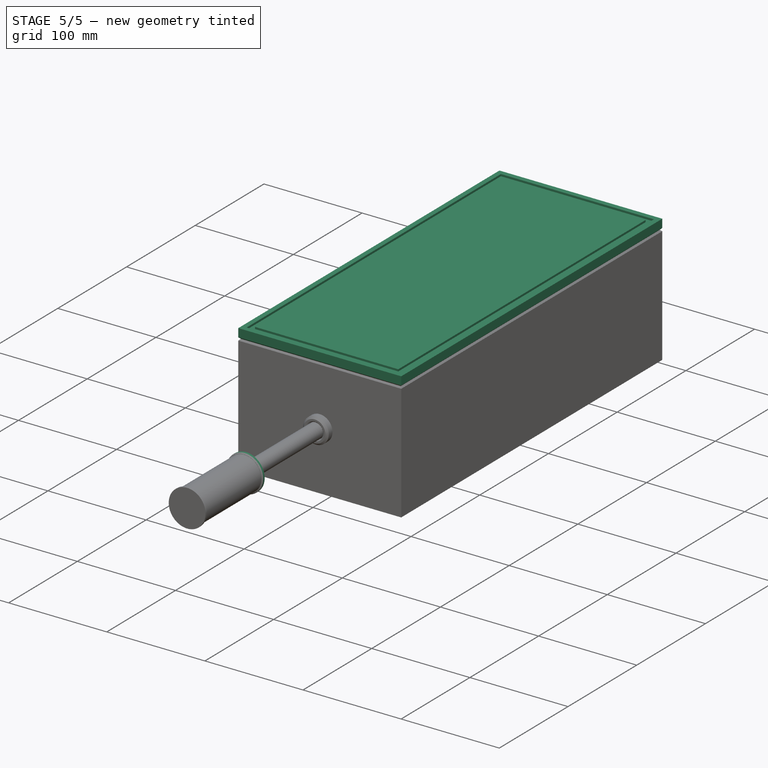
[diagram: stage 5 of 5 — iso view after this stage's code; geometry added in this stage tinted green]
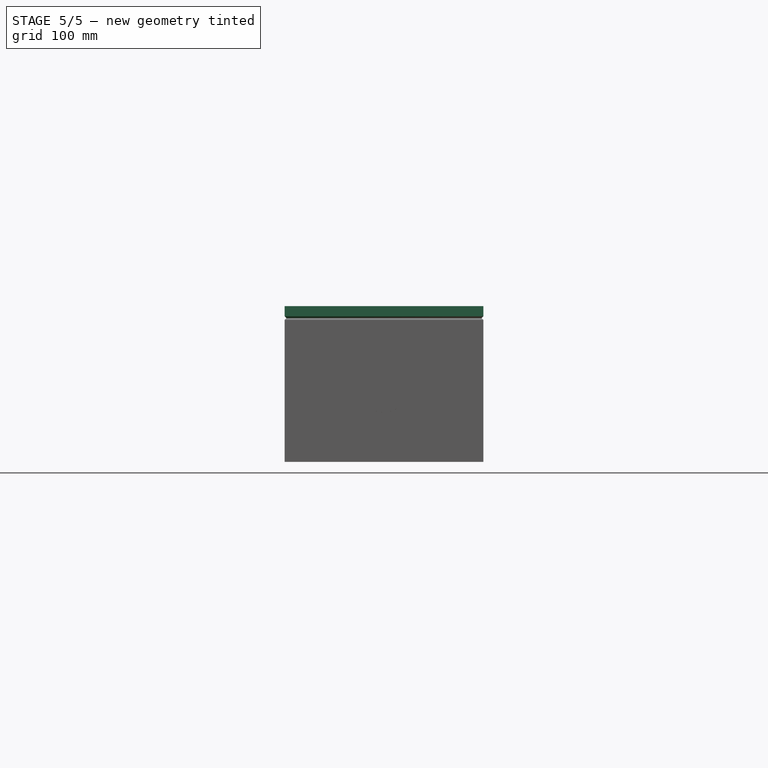
[diagram: stage 5 of 5 — front view after this stage's code; geometry added in this stage tinted green]
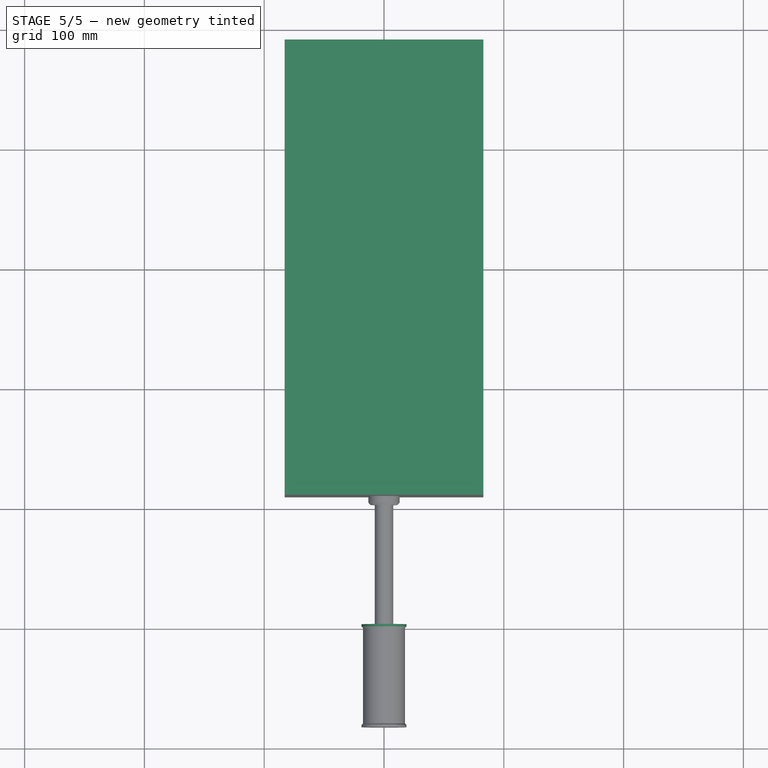
[diagram: stage 5 of 5 — top view after this stage's code; geometry added in this stage tinted green]
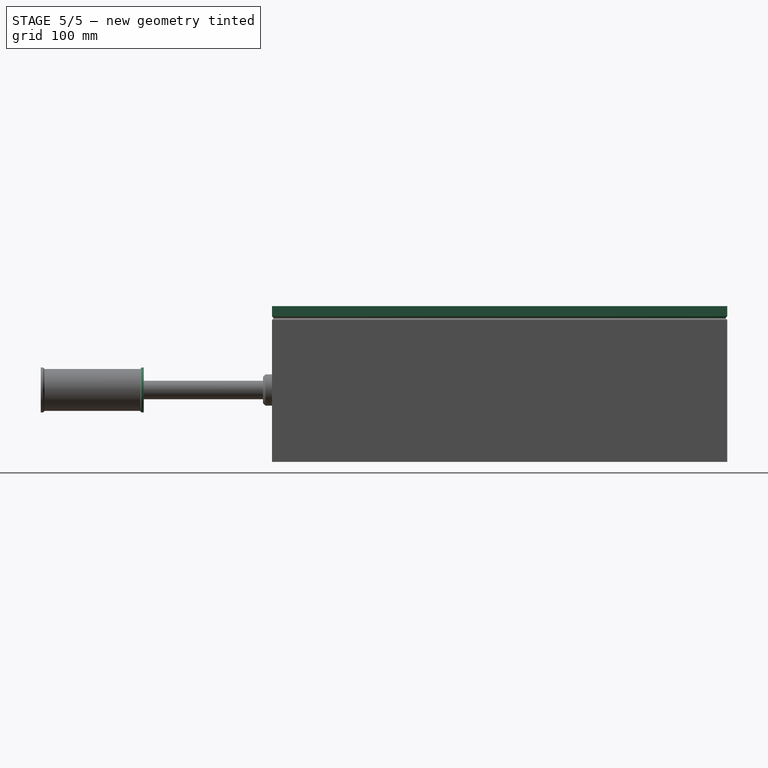
[diagram: stage 5 of 5 — right view after this stage's code; geometry added in this stage tinted green]
FEATURE [Sketcher::SketchObject] Sketch004
  ArcFitTolerance = 1e-06
  AttachmentSupport = -> [XY_Plane001]
  FullyConstrained = true
  MakeInternals = false
  MapMode = 5
  sketch-geometry (5):
    g0: LineSegment StartX=-83 StartY=-190 StartZ=0 EndX=83 EndY=-190 EndZ=0
    g1: LineSegment StartX=83 StartY=-190 StartZ=0 EndX=83 EndY=190 EndZ=0
    g2: LineSegment StartX=83 StartY=190 StartZ=0 EndX=-83 EndY=190 EndZ=0
    g3: LineSegment StartX=-83 StartY=190 StartZ=0 EndX=-83 EndY=-190 EndZ=0
    g4: GeomPoint [constr] X=0 Y=0 Z=0
  constraints (12):
    c: Coincident(g0,g1)
    c: Coincident(g1,g2)
    c: Coincident(g2,g3)
    c: Coincident(g3,g0)
    c: Horizontal(g0)
    c: Horizontal(g2)
    c: Vertical(g1)
    c: Vertical(g3)
    c: Symmetric(g2,g0,g4)
    c: Distance(g1,g3) = 166
    c: Distance(g0,g2) = 380
    c: Coincident(g4,g-1)
FEATURE [PartDesign::Pad] Pad002
  Direction = (0,0,1)
  Length = 130
  Length2 = 10
  Profile = -> Sketch004
  ReferenceAxis = -> Sketch004 [N_Axis]
  Refine = true
  Suppressed = false
  Type = 0
FEATURE [Sketcher::SketchObject] Sketch005
  ArcFitTolerance = 1e-06
  AttachmentSupport = -> [Pad002]
  FullyConstrained = true
  MakeInternals = false
  MapMode = 5
  Placement = pos=(0,0,0) rot=(1,0,0;3.14159rad)
  sketch-geometry (5):
    g0: LineSegment StartX=-83 StartY=-190 StartZ=0 EndX=83 EndY=-190 EndZ=0
    g1: LineSegment StartX=83 StartY=-190 StartZ=0 EndX=83 EndY=190 EndZ=0
    g2: LineSegment StartX=83 StartY=190 StartZ=0 EndX=-83 EndY=190 EndZ=0
    g3: LineSegment StartX=-83 StartY=190 StartZ=0 EndX=-83 EndY=-190 EndZ=0
    g4: GeomPoint [constr] X=0 Y=0 Z=0
  constraints (12):
    c: Coincident(g0,g1)
    c: Coincident(g1,g2)
    c: Coincident(g2,g3)
    c: Coincident(g3,g0)
    c: Horizontal(g0)
    c: Horizontal(g2)
    c: Vertical(g1)
    c: Vertical(g3)
    c: Symmetric(g2,g0,g4)
    c: Distance(g1,g3) = 166
    c: Distance(g0,g2) = 380
    c: Coincident(g4,g-1)
FEATURE [PartDesign::Pocket] Pocket002
  BaseFeature = -> Pad002
  Direction = (0,0,1)
  Length = 120
  Length2 = 5
  Profile = -> Sketch005
  ReferenceAxis = -> Sketch005 [N_Axis]
  Refine = true
  Suppressed = false
  Type = 0
FEATURE [Sketcher::SketchObject] Sketch006
  ArcFitTolerance = 1e-06
  AttachmentSupport = -> [Pocket002]
  FullyConstrained = true
  MakeInternals = false
  MapMode = 5
  Placement = pos=(0,0,120) rot=(1,0,0;3.14159rad)
  sketch-geometry (5):
    g0: LineSegment StartX=-73 StartY=-180 StartZ=0 EndX=73 EndY=-180 EndZ=0
    g1: LineSegment StartX=73 StartY=-180 StartZ=0 EndX=73 EndY=180 EndZ=0
    g2: LineSegment StartX=73 StartY=180 StartZ=0 EndX=-73 EndY=180 EndZ=0
    g3: LineSegment StartX=-73 StartY=180 StartZ=0 EndX=-73 EndY=-180 EndZ=0
    g4: GeomPoint [constr] X=0 Y=0 Z=0
  constraints (12):
    c: Coincident(g0,g1)
    c: Coincident(g1,g2)
    c: Coincident(g2,g3)
    c: Coincident(g3,g0)
    c: Horizontal(g0)
    c: Horizontal(g2)
    c: Vertical(g1)
    c: Vertical(g3)
    c: Symmetric(g2,g0,g4)
    c: Distance(g1,g3) = 146
    c: Distance(g0,g2) = 360
    c: Coincident(g4,g-1)
FEATURE [PartDesign::Pad] Pad003
  BaseFeature = -> Pocket002
  Direction = (0,0,-1)
  Length = 7.5
  Length2 = 10
  Profile = -> Sketch006
  ReferenceAxis = -> Sketch006 [N_Axis]
  Refine = true
  Suppressed = false
  Type = 0
FEATURE [Sketcher::SketchObject] Sketch015
  ArcFitTolerance = 1e-06
  AttachmentSupport = -> [Pad003]
  FullyConstrained = true
  MakeInternals = false
  MapMode = 5
  Placement = pos=(0,0,130) rot=(0,0,1;0rad)
  sketch-geometry (10):
    g0: LineSegment StartX=-78 StartY=-185 StartZ=0 EndX=78 EndY=-185 EndZ=0
    g1: LineSegment StartX=78 StartY=-185 StartZ=0 EndX=78 EndY=185 EndZ=0
    g2: LineSegment StartX=78 StartY=185 StartZ=0 EndX=-78 EndY=185 EndZ=0
    g3: LineSegment StartX=-78 StartY=185 StartZ=0 EndX=-78 EndY=-185 EndZ=0
    g4: GeomPoint [constr] X=0 Y=0 Z=0
    g5: LineSegment StartX=-73 StartY=-180 StartZ=0 EndX=73 EndY=-180 EndZ=0
    g6: LineSegment StartX=73 StartY=-180 StartZ=0 EndX=73 EndY=180 EndZ=0
    g7: LineSegment StartX=73 StartY=180 StartZ=0 EndX=-73 EndY=180 EndZ=0
    g8: LineSegment StartX=-73 StartY=180 StartZ=0 EndX=-73 EndY=-180 EndZ=0
    g9: GeomPoint [constr] X=0 Y=0 Z=0
  constraints (24):
    c: Coincident(g0,g1)
    c: Coincident(g1,g2)
    c: Coincident(g2,g3)
    c: Coincident(g3,g0)
    c: Horizontal(g0)
    c: Horizontal(g2)
    c: Vertical(g1)
    c: Vertical(g3)
    c: Symmetric(g2,g0,g4)
    c: Distance(g1,g3) = 156
    c: Distance(g0,g2) = 370
    c: Coincident(g4,g-1)
    c: Coincident(g5,g6)
    c: Coincident(g6,g7)
    c: Coincident(g7,g8)
    c: Coincident(g8,g5)
    c: Horizontal(g5)
    c: Horizontal(g7)
    c: Vertical(g6)
    c: Vertical(g8)
    c: Symmetric(g7,g5,g9)
    c: Distance(g6,g8) = 146
    c: Distance(g5,g7) = 360
    c: Coincident(g9,g4)
FEATURE [PartDesign::Pocket] Pocket008
  BaseFeature = -> Pad003
  Direction = (0,0,-1)
  Length = 2
  Length2 = 5
  Profile = -> Sketch015
  ReferenceAxis = -> Sketch015 [N_Axis]
  Refine = true
  Suppressed = false
  Type = 0
FEATURE [PartDesign::Chamfer] Chamfer005
  Angle = 45
  Base = -> Pocket008 [Edge7,Edge1,Edge6,Edge5]
  BaseFeature = -> Pocket008
  ChamferType = 0
  FlipDirection = false
  Refine = true
  Size = 1.5
  Size2 = 1
  SupportTransform = false
  Suppressed = false
  UseAllEdges = false
FEATURE [Sketcher::SketchObject] Sketch020
  ArcFitTolerance = 1e-06
  AttachmentSupport = -> [Pad009]
  FullyConstrained = false
  MakeInternals = false
  MapMode = 5
  Placement = pos=(0,-300,0) rot=(-1,0,0;1.5708rad)
  sketch-geometry (1):
    g0: Circle CenterX=0 CenterY=-60.019 CenterZ=0 NormalX=0 NormalY=0 NormalZ=1 AngleXU=0 Radius=18.75
  constraints (2):
    c: Diameter(g0) = 37.5
    c: PointOnObject(g0,g-2)
FEATURE [PartDesign::Pad] Pad010
  BaseFeature = -> Pad009
  Direction = (0,1,2e-16)
  Length = 3
  Length2 = 10
  Placement = pos=(0,0,0) rot=(1,0,0;1.5708rad)
  Profile = -> Sketch020
  ReferenceAxis = -> Sketch020 [N_Axis]
  Refine = true
  Suppressed = false
  Type = 0
FEATURE [PartDesign::Chamfer] Chamfer007
  Angle = 45
  Base = -> Pad010 [Edge11,Edge15]
  BaseFeature = -> Pad010
  ChamferType = 0
  FlipDirection = false
  Placement = pos=(0,0,0) rot=(1,0,0;1.5708rad)
  Refine = true
  Size = 1
  Size2 = 1
  SupportTransform = false
  Suppressed = false
  UseAllEdges = false
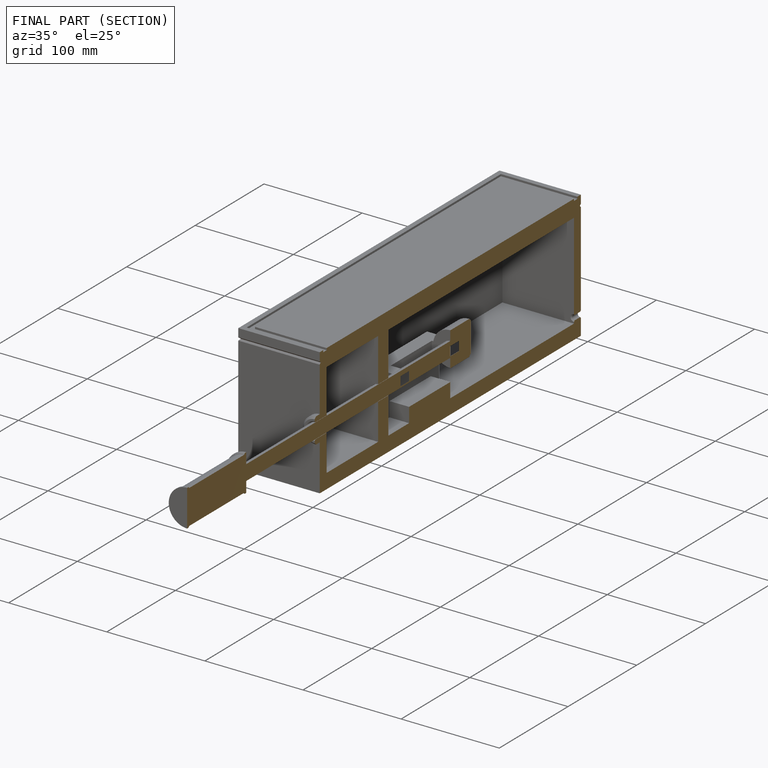
[diagram: finished part — half-section view (interior)]
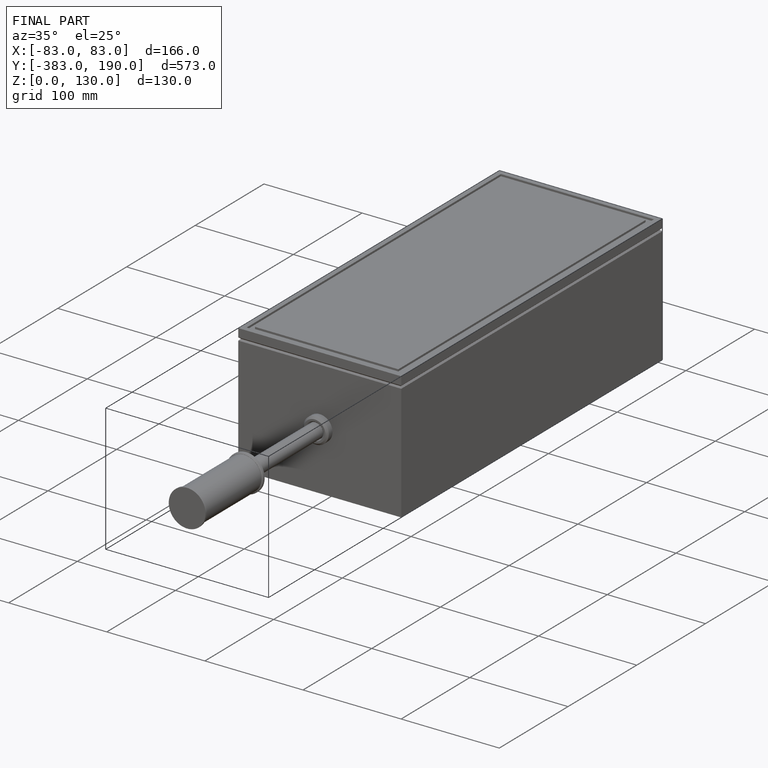
[diagram: finished part — iso view with bounding-box wireframe]
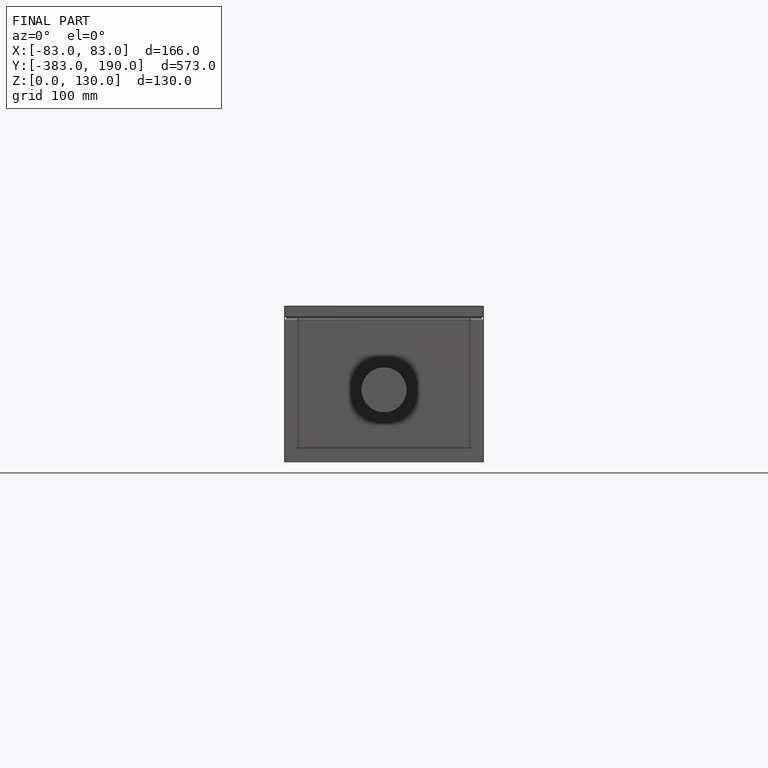
[diagram: finished part — front view with bounding-box wireframe]
